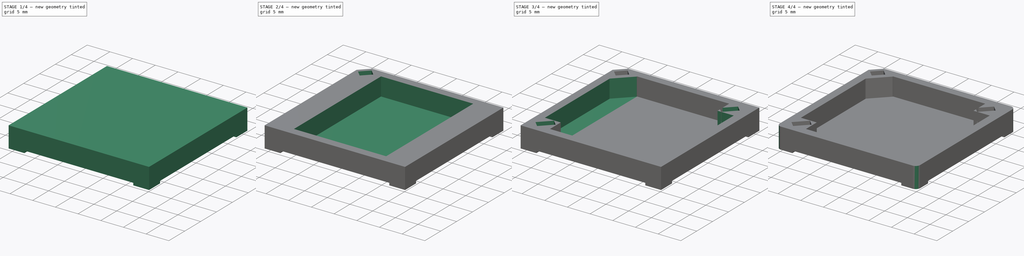
[diagram: build sequence overview — one tinted view per stage of 4, left to right]
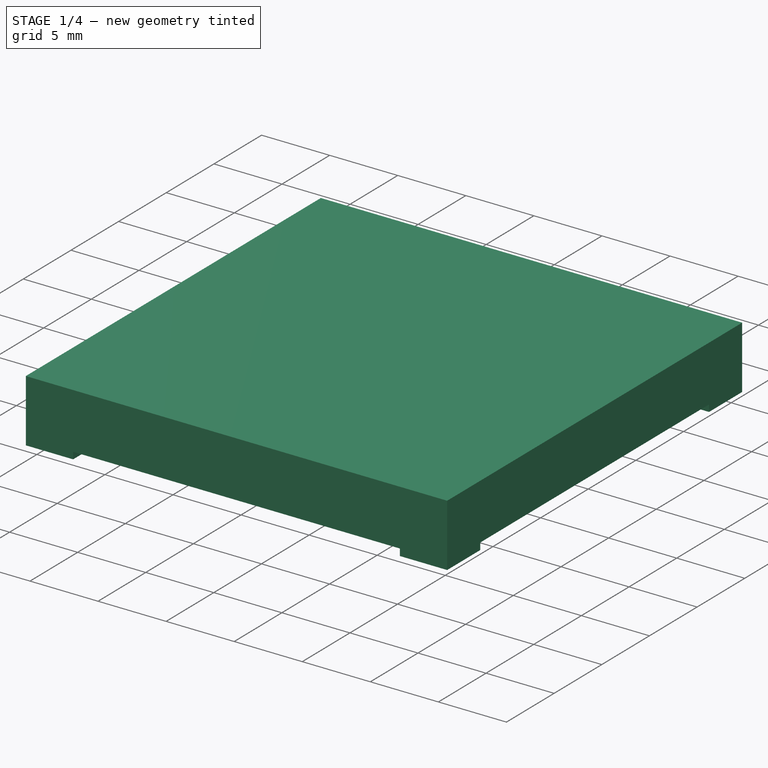
[diagram: stage 1 of 4 — iso view after this stage's code; geometry added in this stage tinted green]
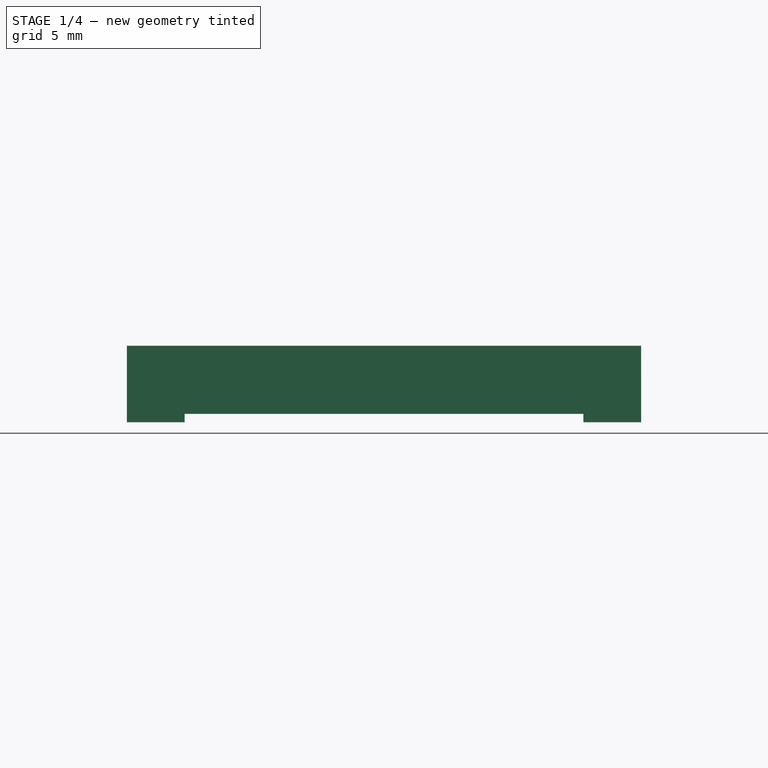
[diagram: stage 1 of 4 — front view after this stage's code; geometry added in this stage tinted green]
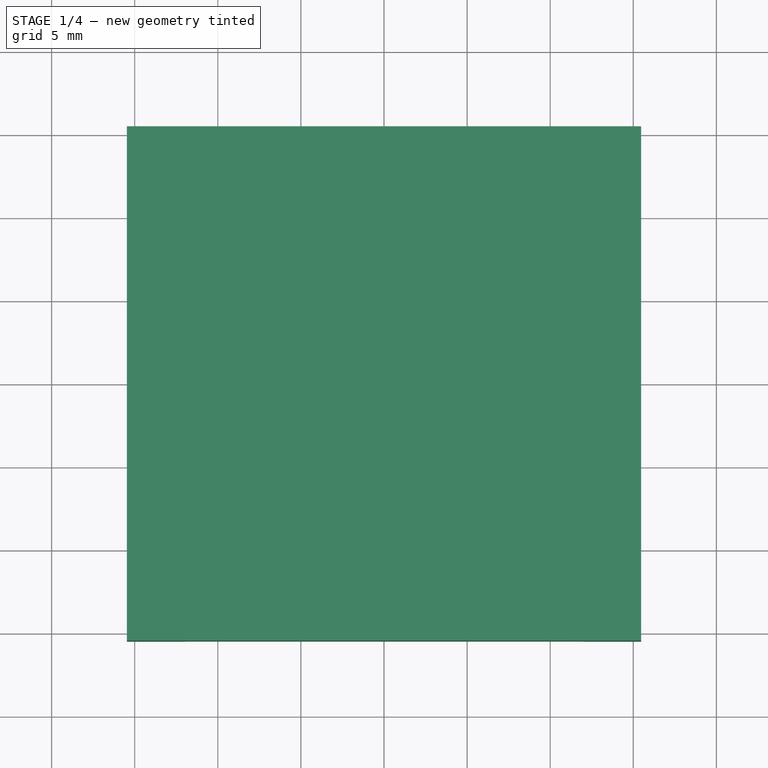
[diagram: stage 1 of 4 — top view after this stage's code; geometry added in this stage tinted green]
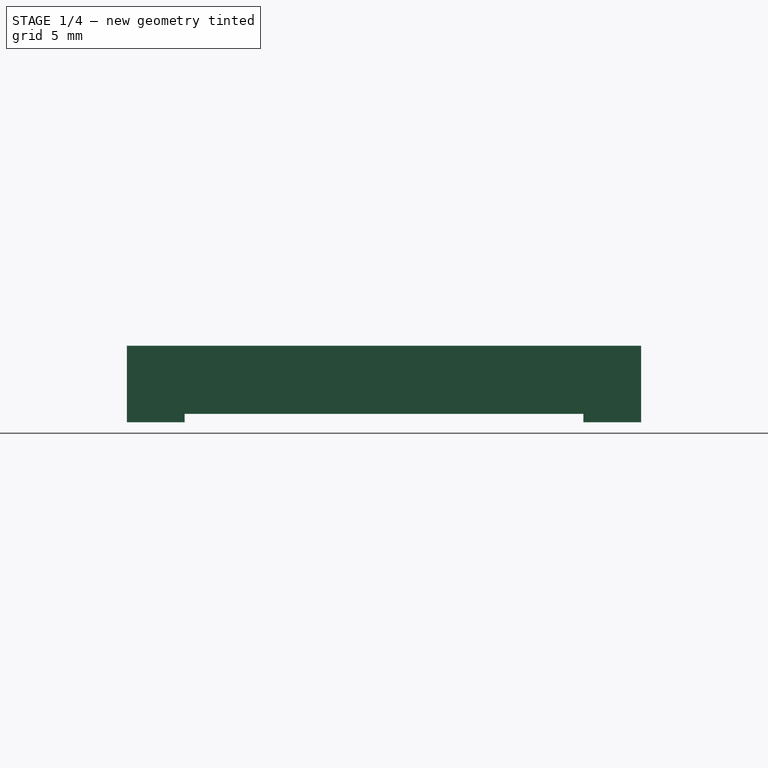
[diagram: stage 1 of 4 — right view after this stage's code; geometry added in this stage tinted green]
FCSTD DOCUMENT  (FreeCAD 0.19R24291 (Git))
Label: 3M_PLCC-68
License: All rights reserved
LicenseURL: http://en.wikipedia.org/wiki/All_rights_reserved
objects: PartDesign::SubtractiveBox×8, PartDesign::Fillet×3, Sketcher::SketchObject×1, PartDesign::AdditiveBox×1, PartDesign::Chamfer×1, PartDesign::Body×1
note: 28 computed .brp shape members not serialized (recipe doc carries the construction recipe); baked Part::Feature solids carry a one-line shape summary decoded from their .brp

FEATURE [Sketcher::SketchObject] Sketch
  FullyConstrained = false
  MapMode = 5
  Support = -> [XY_Plane]
  sketch-geometry (4):
    g0: LineSegment StartX=-15.475 StartY=15.475 StartZ=0 EndX=15.475 EndY=15.475 EndZ=0
    g1: LineSegment StartX=15.475 StartY=15.475 StartZ=0 EndX=15.475 EndY=-15.475 EndZ=0
    g2: LineSegment StartX=15.475 StartY=-15.475 StartZ=0 EndX=-15.475 EndY=-15.475 EndZ=0
    g3: LineSegment StartX=-15.475 StartY=-15.475 StartZ=0 EndX=-15.475 EndY=15.475 EndZ=0
  constraints (8):
    c: Coincident(g0,g1)
    c: Coincident(g1,g2)
    c: Coincident(g2,g3)
    c: Coincident(g3,g0)
    c: Horizontal(g0)
    c: Horizontal(g2)
    c: Vertical(g1)
    c: Vertical(g3)
FEATURE [PartDesign::AdditiveBox] Box  label="base"
  AttacherType = Attacher::AttachEngine3D
  AttachmentOffset = pos=(-15.475,-15.475,0) rot=(0,0,1;0rad)
  Height = 4.6
  Length = 30.95
  MapMode = 5
  Placement = pos=(-15.475,-15.475,0) rot=(0,0,1;0rad)
  Support = -> [XY_Plane]
  Width = 30.95
FEATURE [PartDesign::SubtractiveBox] Box001  label="underfoots1"
  AttacherType = Attacher::AttachEngine3D
  AttachmentOffset = pos=(-15.475,-12,0) rot=(0,0,1;0rad)
  BaseFeature = -> Box
  Height = 0.5
  Length = 30.975
  MapMode = 5
  Placement = pos=(-15.475,-12,0) rot=(0,0,1;0rad)
  Support = -> [XY_Plane]
  Width = 24
FEATURE [PartDesign::SubtractiveBox] Box002  label="underfoots2"
  AttacherType = Attacher::AttachEngine3D
  AttachmentOffset = pos=(-12,-15.475,0) rot=(0,0,1;0rad)
  BaseFeature = -> Box001
  Height = 0.5
  Length = 24
  MapMode = 5
  Placement = pos=(-12,-15.475,0) rot=(0,0,1;0rad)
  Support = -> [XY_Plane]
  Width = 30.975
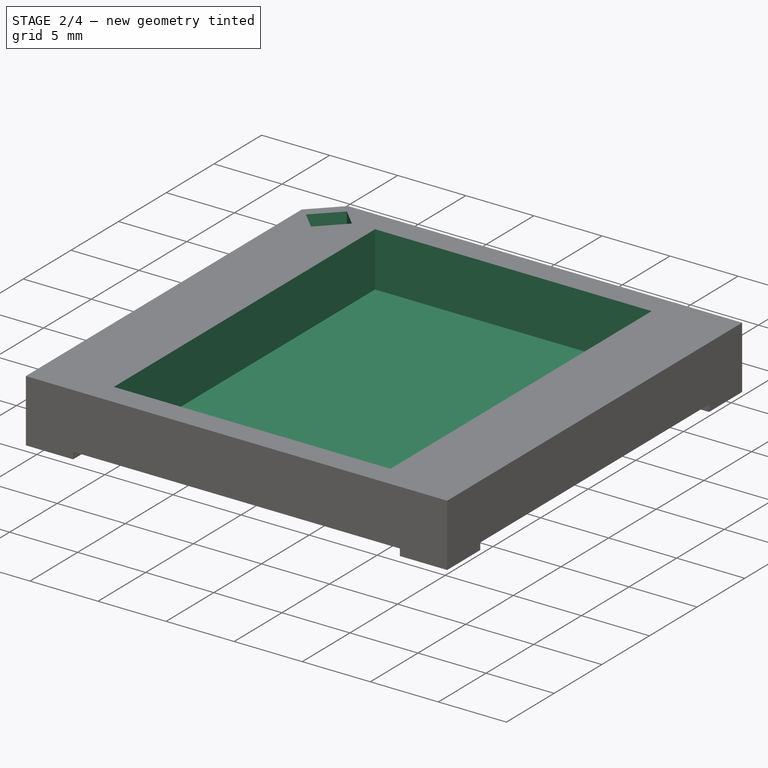
[diagram: stage 2 of 4 — iso view after this stage's code; geometry added in this stage tinted green]
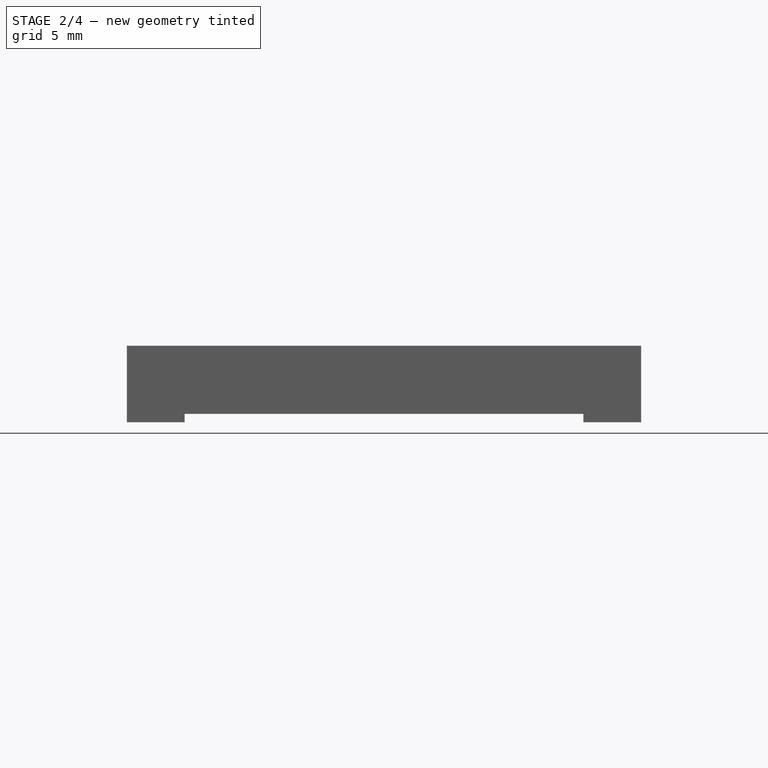
[diagram: stage 2 of 4 — front view after this stage's code; geometry added in this stage tinted green]
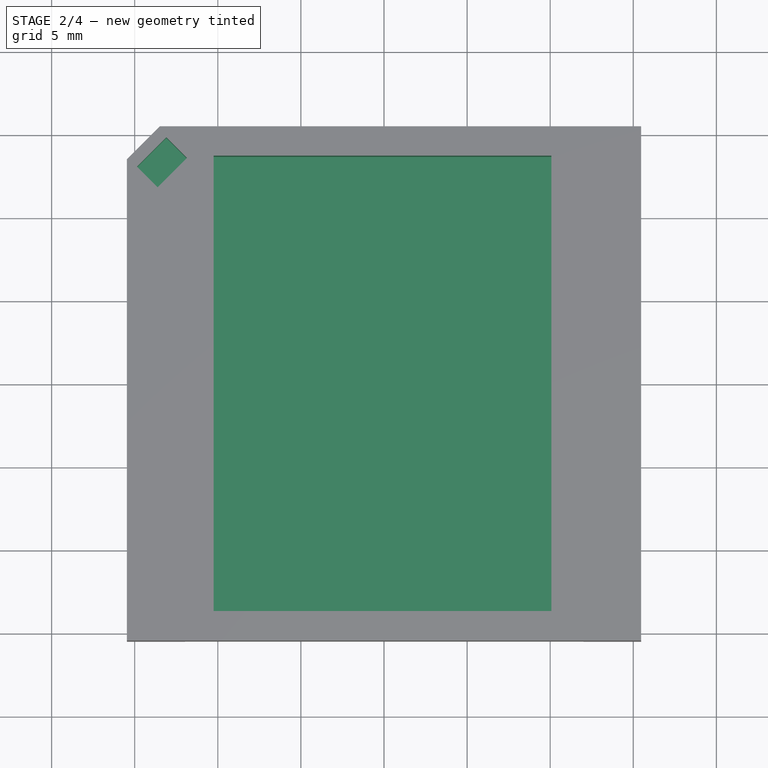
[diagram: stage 2 of 4 — top view after this stage's code; geometry added in this stage tinted green]
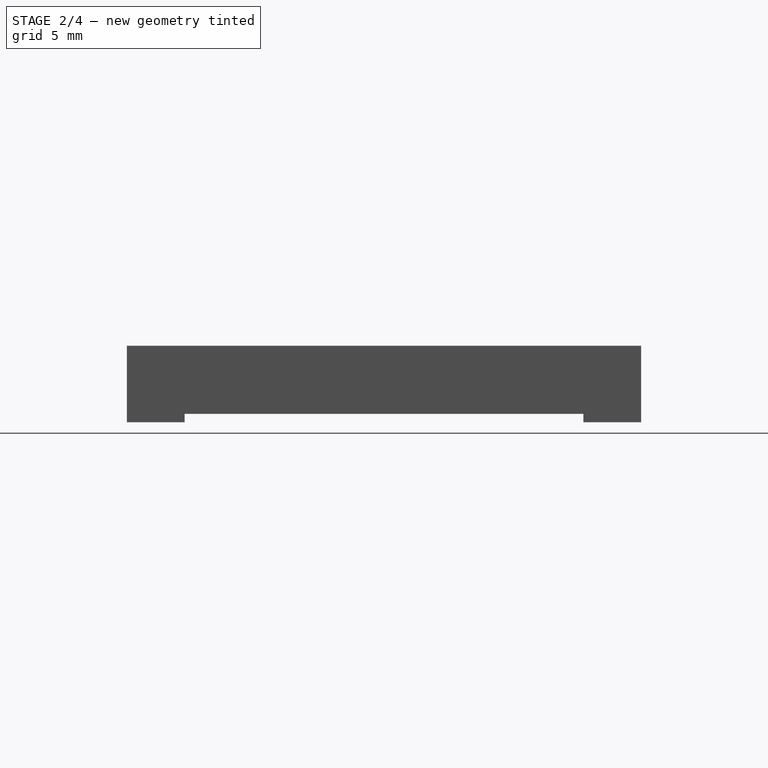
[diagram: stage 2 of 4 — right view after this stage's code; geometry added in this stage tinted green]
FEATURE [PartDesign::SubtractiveBox] Box003  label="main opening"
  AttacherType = Attacher::AttachEngine3D
  AttachmentOffset = pos=(-10.252,-13.7,0.6) rot=(0,0,1;0rad)
  BaseFeature = -> Box002
  Height = 4
  Length = 20.32
  MapMode = 5
  Placement = pos=(-10.252,-13.7,0.6) rot=(0,0,1;0rad)
  Support = -> [XY_Plane]
  Width = 27.4
FEATURE [PartDesign::Chamfer] Chamfer  label="pin1-side-cut"
  Angle = 45
  Base = -> Box003 [Edge2]
  BaseFeature = -> Box003
  ChamferType = 0
  FlipDirection = false
  Placement = pos=(-10.252,-13.7,0.6) rot=(0,0,1;0rad)
  Size = 2
  Size2 = 1
  SupportTransform = false
FEATURE [PartDesign::SubtractiveBox] Box004  label="Outer-top_45-cut"
  AttacherType = Attacher::AttachEngine3D
  AttachmentOffset = pos=(-13.625,11.8,2.5) rot=(0,0,1;0.785398rad)
  BaseFeature = -> Chamfer
  Height = 3
  Length = 2.5
  MapMode = 5
  Placement = pos=(-13.625,11.8,2.5) rot=(0,0,1;0.785398rad)
  Support = -> [XY_Plane]
  Width = 1.75
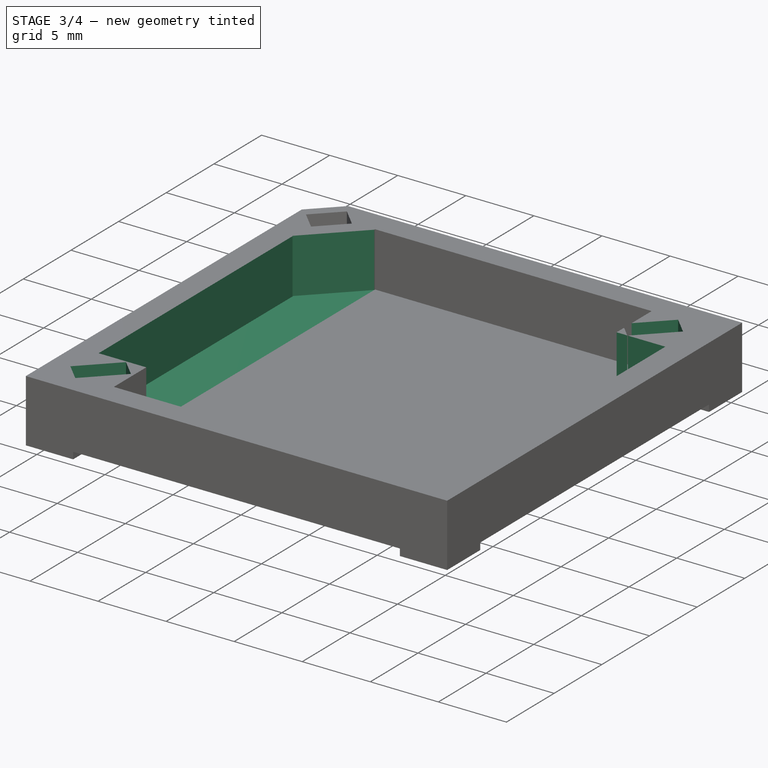
[diagram: stage 3 of 4 — iso view after this stage's code; geometry added in this stage tinted green]
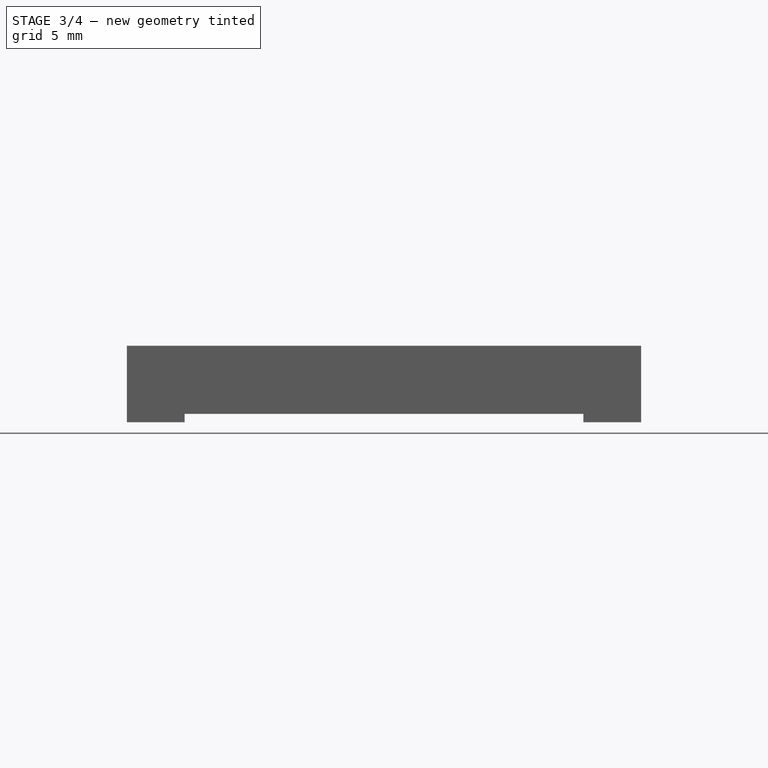
[diagram: stage 3 of 4 — front view after this stage's code; geometry added in this stage tinted green]
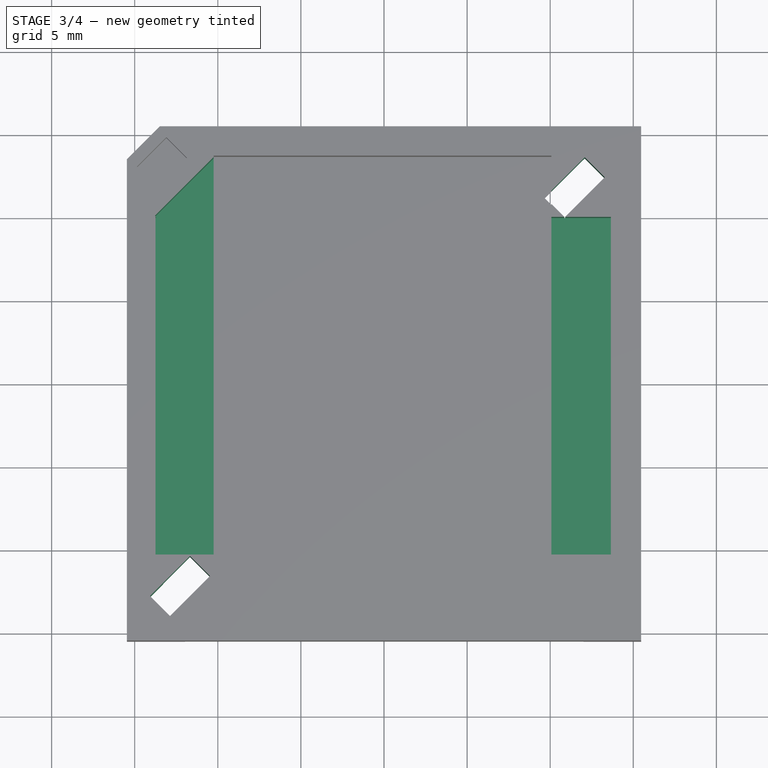
[diagram: stage 3 of 4 — top view after this stage's code; geometry added in this stage tinted green]
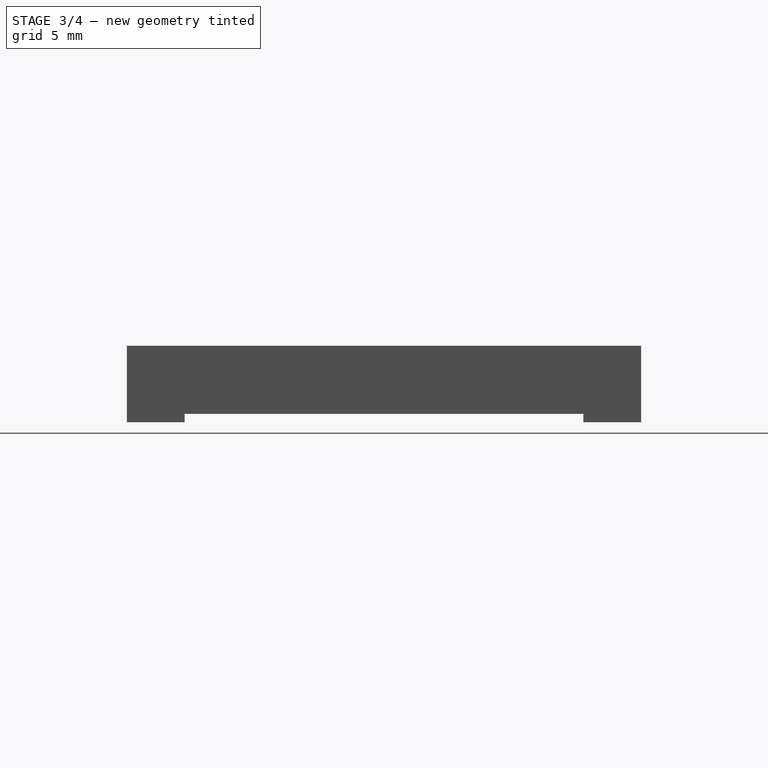
[diagram: stage 3 of 4 — right view after this stage's code; geometry added in this stage tinted green]
FEATURE [PartDesign::SubtractiveBox] Box005  label="Horizontal-inner-opening"
  AttacherType = Attacher::AttachEngine3D
  AttachmentOffset = pos=(-13.75,-10.3,0.6) rot=(0,0,1;0rad)
  BaseFeature = -> Box004
  Height = 4
  Length = 27.4
  MapMode = 5
  Placement = pos=(-13.75,-10.3,0.6) rot=(0,0,1;0rad)
  Support = -> [XY_Plane]
  Width = 20.32
FEATURE [PartDesign::SubtractiveBox] Box006  label="Inner_top-cut"
  AttacherType = Attacher::AttachEngine3D
  AttachmentOffset = pos=(-11.45,7.75,0.6) rot=(0,0,1;0.785398rad)
  BaseFeature = -> Box005
  Height = 4
  Length = 5.1
  MapMode = 5
  Placement = pos=(-11.45,7.75,0.6) rot=(0,0,1;0.785398rad)
  Support = -> [XY_Plane]
  Width = 3.3
FEATURE [PartDesign::SubtractiveBox] Box007  label="post-hole-cut1"
  AttacherType = Attacher::AttachEngine3D
  AttachmentOffset = pos=(-12.875,-14,0) rot=(0,0,1;0.785398rad)
  BaseFeature = -> Box006
  Height = 4.6
  Length = 3.4
  MapMode = 5
  Placement = pos=(-12.875,-14,0) rot=(0,0,1;0.785398rad)
  Support = -> [XY_Plane]
  Width = 1.7
FEATURE [PartDesign::SubtractiveBox] Box008  label="post-hole-cut2"
  AttacherType = Attacher::AttachEngine3D
  AttachmentOffset = pos=(10.875,10,0) rot=(0,0,1;0.785398rad)
  BaseFeature = -> Box007
  Height = 4.6
  Length = 3.4
  MapMode = 5
  Placement = pos=(10.875,10,0) rot=(0,0,1;0.785398rad)
  Support = -> [XY_Plane]
  Width = 1.7
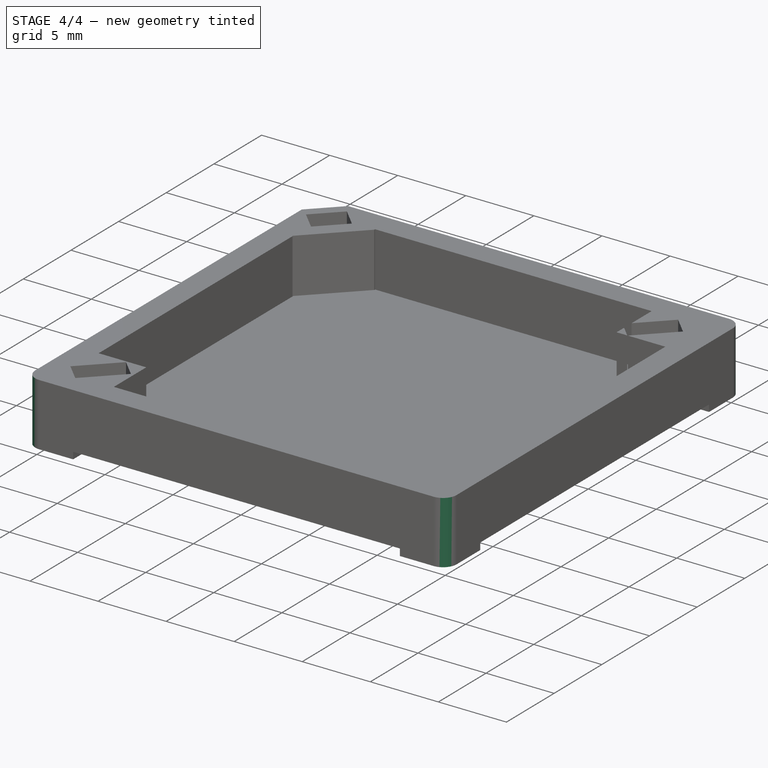
[diagram: stage 4 of 4 — iso view after this stage's code; geometry added in this stage tinted green]
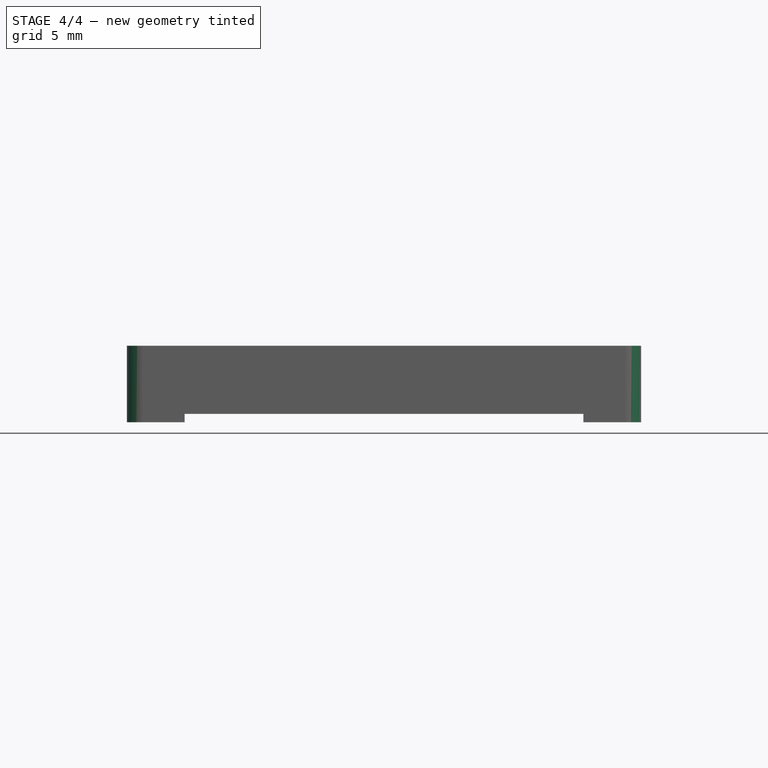
[diagram: stage 4 of 4 — front view after this stage's code; geometry added in this stage tinted green]
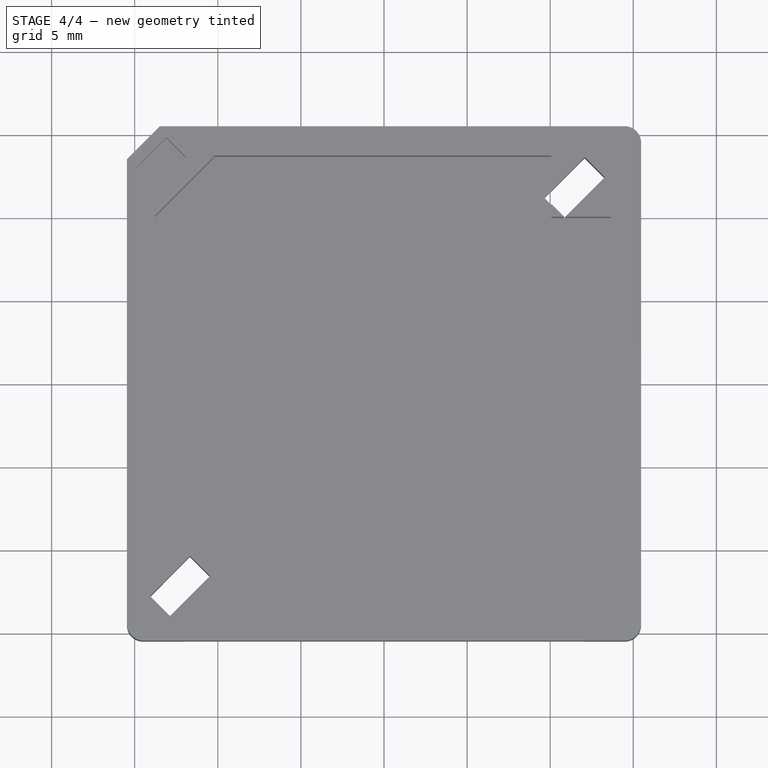
[diagram: stage 4 of 4 — top view after this stage's code; geometry added in this stage tinted green]
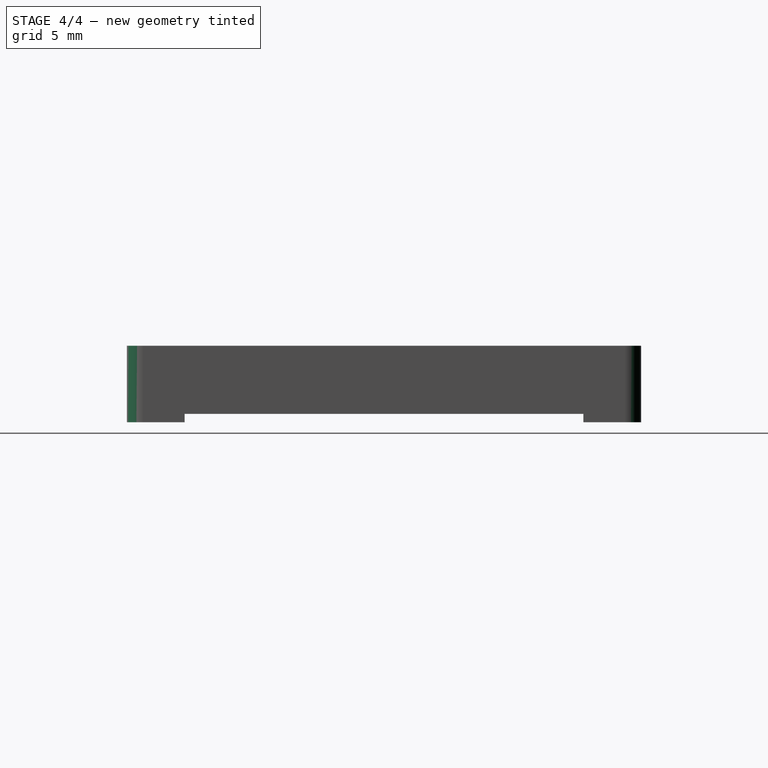
[diagram: stage 4 of 4 — right view after this stage's code; geometry added in this stage tinted green]
FEATURE [PartDesign::Fillet] Fillet
  Base = -> Box008 [Edge3]
  BaseFeature = -> Box008
  Placement = pos=(10.875,10,0) rot=(0,0,1;0.785398rad)
  Radius = 1
  SupportTransform = false
FEATURE [PartDesign::Fillet] Fillet001
  Base = -> Fillet [Edge60]
  BaseFeature = -> Fillet
  Placement = pos=(10.875,10,0) rot=(0,0,1;0.785398rad)
  Radius = 1
  SupportTransform = false
FEATURE [PartDesign::Fillet] Fillet002
  Base = -> Fillet001 [Edge44]
  BaseFeature = -> Fillet001
  Placement = pos=(10.875,10,0) rot=(0,0,1;0.785398rad)
  Radius = 1
  SupportTransform = false
FEATURE [PartDesign::Body] Body
  Group = -> [Sketch,Box,Box001,Box002,Box003,Chamfer,Box004,Box005,Box006,Box007,Box008,Fillet,Fillet001,Fillet002]
  Origin = -> Origin
  Tip = -> Fillet002
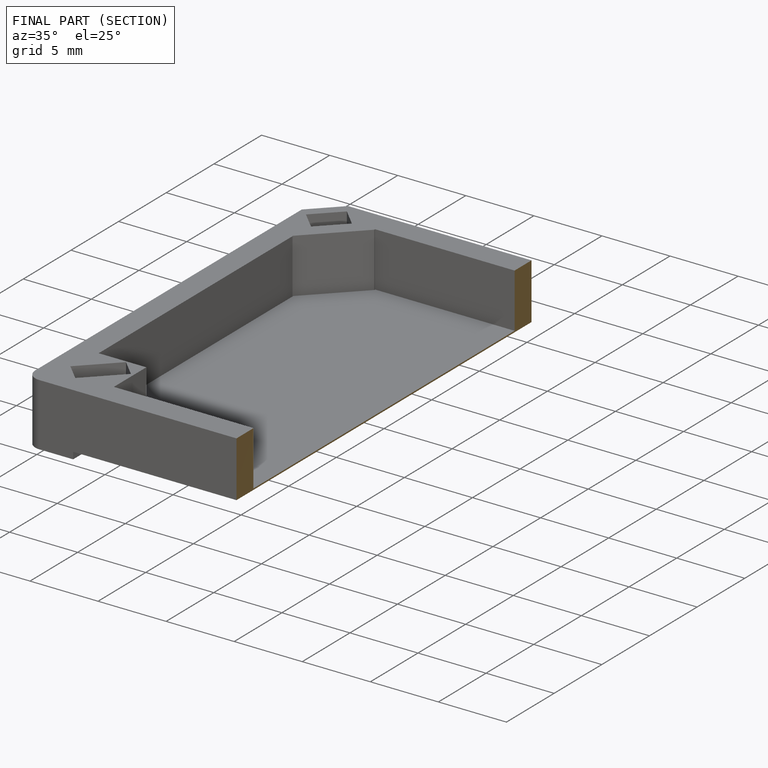
[diagram: finished part — half-section view (interior)]
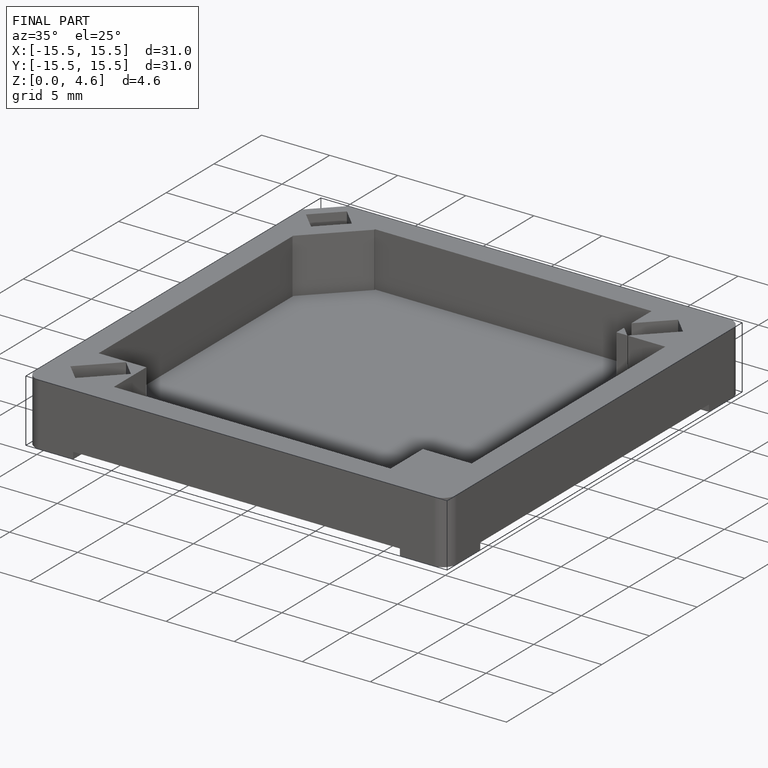
[diagram: finished part — iso view with bounding-box wireframe]
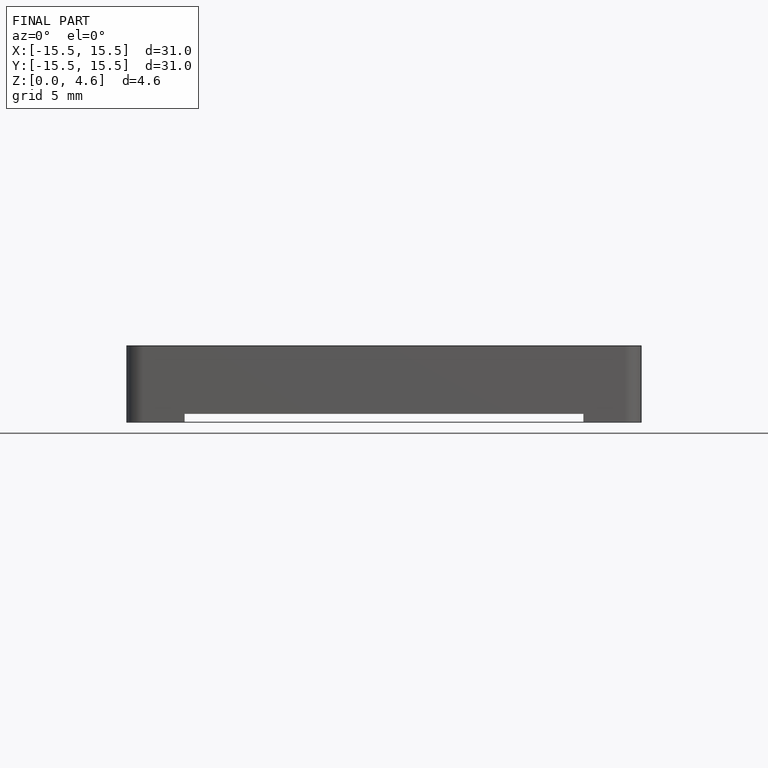
[diagram: finished part — front view with bounding-box wireframe]
